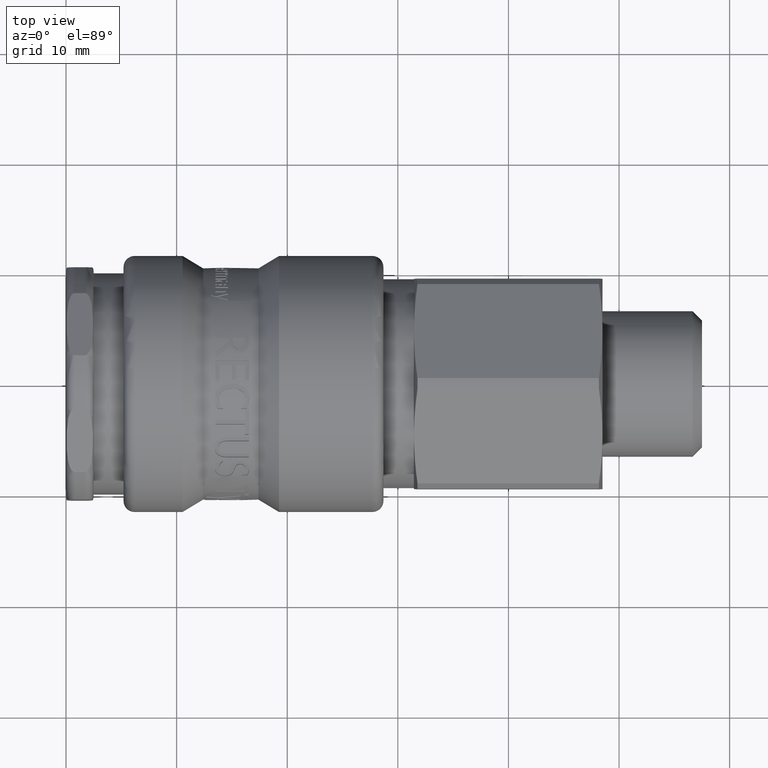
[diagram: clean part render]
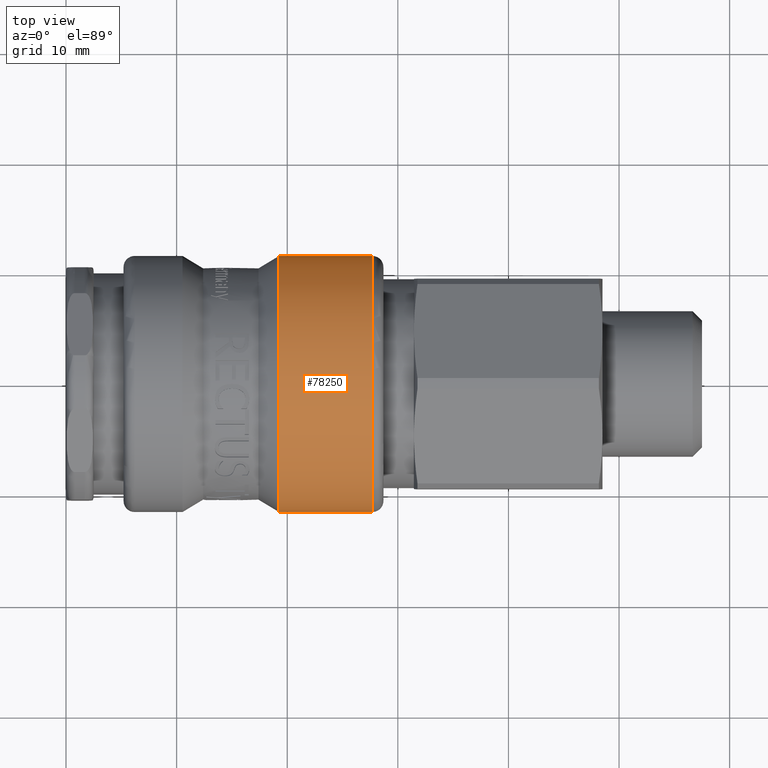
[diagram: same view with one face highlighted and labeled with its STEP entity id]
A machine part, top view. The second image highlights one B-rep face of the part: STEP entity #78250.
In plain terms, the highlighted cylindrical surface (bore or boss wall) has radius 11.575 mm, axis along (1, 0, 0).
Its self-contained STEP definition (entity closure, byte-faithful):
#77982=CARTESIAN_POINT('',(27.700000000000003,1.290174328993912,-11.502872476073318));
#77983=VERTEX_POINT('',#77982);
#77984=CARTESIAN_POINT('',(27.700000000000003,0.0,0.0));
#77985=DIRECTION('',(1.0,0.0,0.0));
#77986=DIRECTION('',(0.0,0.111462145053470,-0.993768680438300));
#77987=AXIS2_PLACEMENT_3D('',#77984,#77985,#77986);
#77988=CIRCLE('',#77987,11.574999999999999);
#77989=EDGE_CURVE('',#77983,#77983,#77988,.T.);
#78224=CARTESIAN_POINT('',(19.261954618136549,1.290174328993912,-11.502872476073318));
#78225=VERTEX_POINT('',#78224);
#78226=CARTESIAN_POINT('',(19.261954618136549,0.0,0.0));
#78227=DIRECTION('',(1.0,0.0,0.0));
#78228=DIRECTION('',(0.0,0.111462145053470,-0.993768680438300));
#78229=AXIS2_PLACEMENT_3D('',#78226,#78227,#78228);
#78230=CIRCLE('',#78229,11.574999999999999);
#78231=EDGE_CURVE('',#78225,#78225,#78230,.T.);
#78239=CARTESIAN_POINT('',(23.480977309068276,0.0,0.0));
#78240=DIRECTION('',(1.0,0.0,0.0));
#78241=DIRECTION('',(0.0,0.111462145053470,-0.993768680438300));
#78242=AXIS2_PLACEMENT_3D('',#78239,#78240,#78241);
#78243=CYLINDRICAL_SURFACE('',#78242,11.574999999999999);
#78244=ORIENTED_EDGE('',*,*,#77989,.F.);
#78245=EDGE_LOOP('',(#78244));
#78246=FACE_OUTER_BOUND('',#78245,.T.);
#78247=ORIENTED_EDGE('',*,*,#78231,.T.);
#78248=EDGE_LOOP('',(#78247));
#78249=FACE_BOUND('',#78248,.T.);
#78250=ADVANCED_FACE('',(#78246,#78249),#78243,.T.);